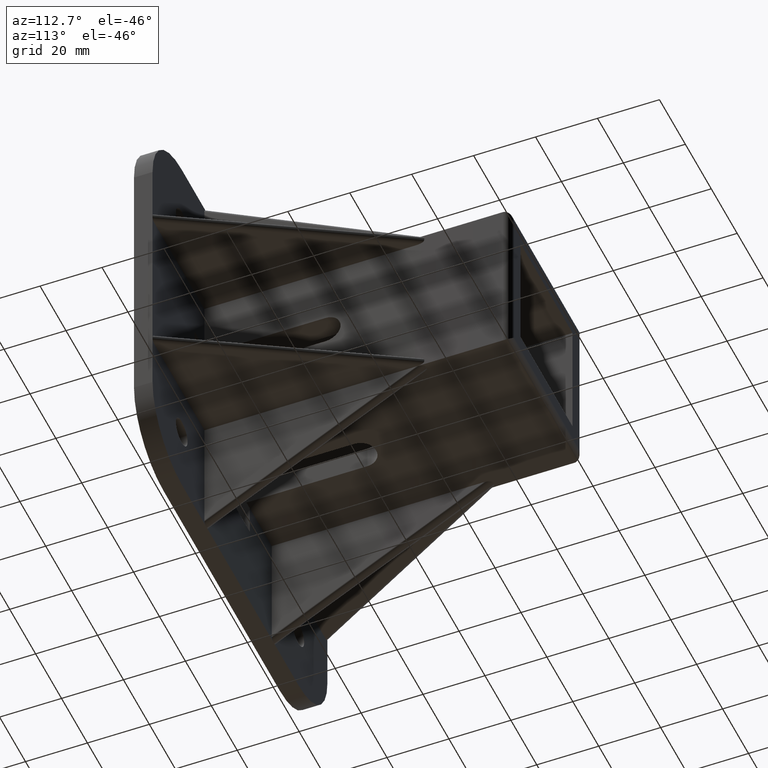
[diagram: clean part render]
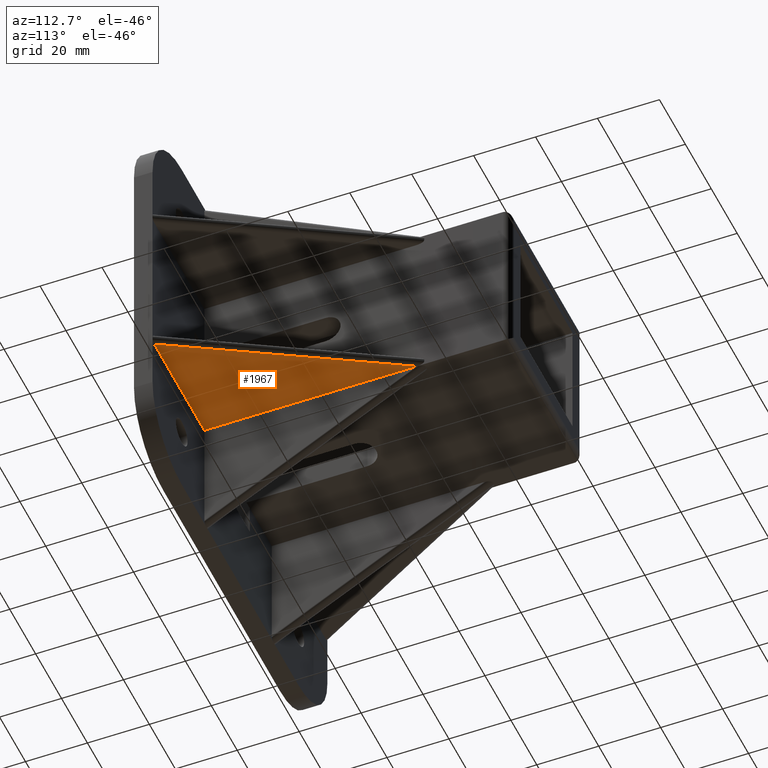
[diagram: same view with one face highlighted and labeled with its STEP entity id]
A machine part, auxiliary view. The second image highlights one B-rep face of the part: STEP entity #1967.
In plain terms, the highlighted planar face has unit normal (0, 0, 1).
Its self-contained STEP definition (entity closure, byte-faithful):
#159=LINE('',#3059,#391);
#160=LINE('',#3061,#392);
#161=LINE('',#3062,#393);
#391=VECTOR('',#2427,68.5552300721745);
#392=VECTOR('',#2428,78.6862745894892);
#393=VECTOR('',#2429,38.6226648293941);
#533=PLANE('',#2104);
#625=FACE_OUTER_BOUND('',#740,.T.);
#740=EDGE_LOOP('',(#1489,#1490,#1491));
#949=VERTEX_POINT('',#2998);
#971=VERTEX_POINT('',#3058);
#972=VERTEX_POINT('',#3060);
#1174=EDGE_CURVE('',#971,#949,#159,.T.);
#1175=EDGE_CURVE('',#949,#972,#160,.T.);
#1176=EDGE_CURVE('',#972,#971,#161,.T.);
#1489=ORIENTED_EDGE('',*,*,#1174,.T.);
#1490=ORIENTED_EDGE('',*,*,#1175,.T.);
#1491=ORIENTED_EDGE('',*,*,#1176,.T.);
#1967=ADVANCED_FACE('',(#625),#533,.F.);
#2104=AXIS2_PLACEMENT_3D('',#3057,#2425,#2426);
#2425=DIRECTION('center_axis',(0.,0.,1.));
#2426=DIRECTION('ref_axis',(1.,0.,0.));
#2427=DIRECTION('',(0.,1.,0.));
#2428=DIRECTION('',(0.490843733940776,-0.871247627744877,0.));
#2429=DIRECTION('',(-1.,0.,0.));
#2998=CARTESIAN_POINT('',(27.5,74.5552300721745,-27.5));
#3057=CARTESIAN_POINT('Origin',(27.5,105.,-27.5));
#3058=CARTESIAN_POINT('',(27.5,6.,-27.5));
#3059=CARTESIAN_POINT('',(27.5,105.,-27.5));
#3060=CARTESIAN_POINT('',(66.1226648293941,6.,-27.5));
#3061=CARTESIAN_POINT('',(66.4545028467061,5.41098751927109,-27.5));
#3062=CARTESIAN_POINT('',(27.5,6.,-27.5));